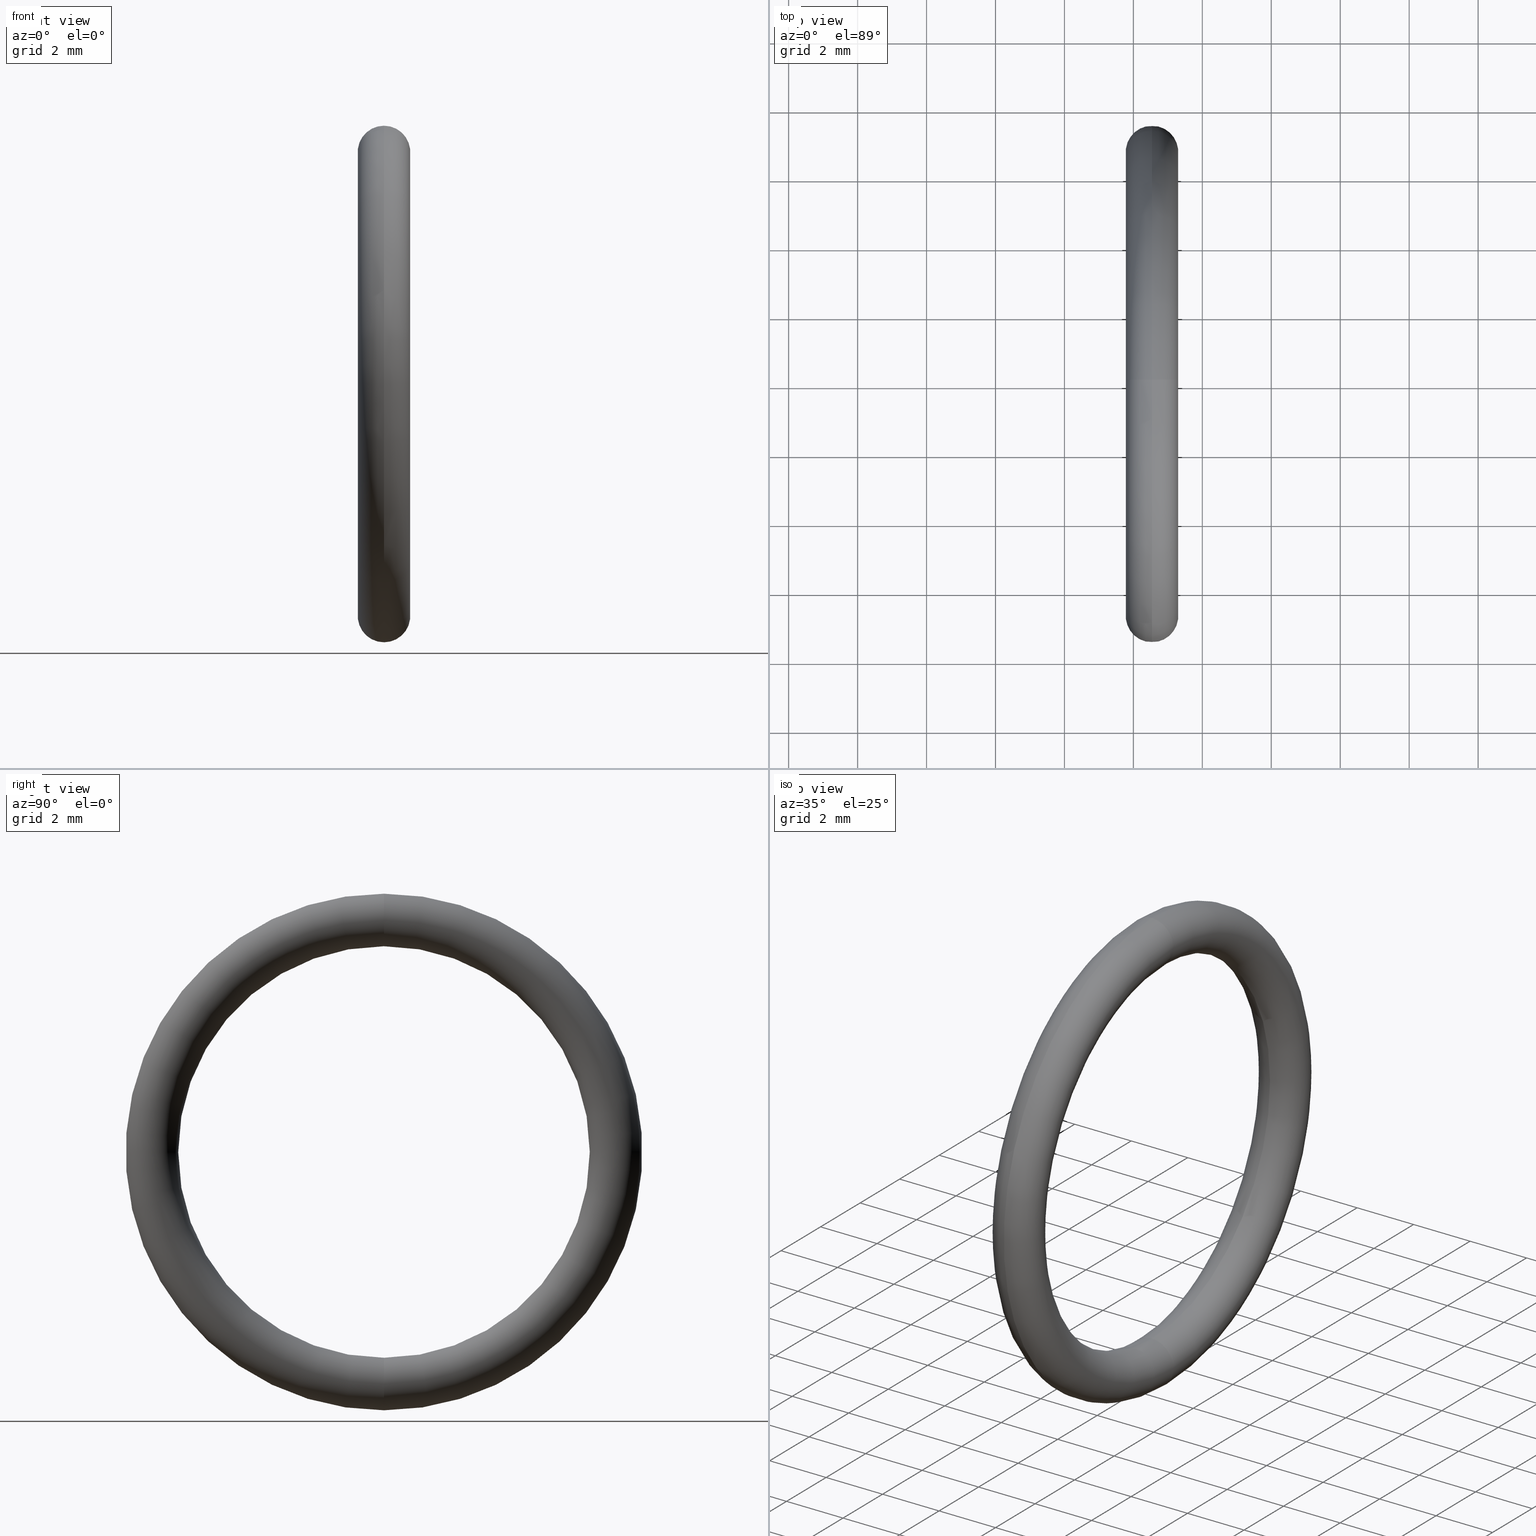
[diagram: canonical four-view strip — front | top / right | iso, engineering-drawing reading convention]
A machine part, canonical four-view strip (front | top / right | iso — engineering-drawing reading convention). The complete STEP part file that produces these views, byte-faithful:
ISO-10303-21;
HEADER;
FILE_DESCRIPTION (( 'STEP AP203' ),
    '1' );
FILE_NAME ('OM-16-VT.STEP',
    '2008-06-24T09:38:23',
    ( 'BSI05' ),
    ( 'BAYSTATE' ),
    'SwSTEP 2.0',
    'SolidWorks 2007',
    '' );
FILE_SCHEMA (( 'CONFIG_CONTROL_DESIGN' ));
ENDSEC;

DATA;
#1 = ORIENTED_EDGE ( 'NONE', *, *, #31, .T. ) ;
#2 = ORIENTED_EDGE ( 'NONE', *, *, #24, .F. ) ;
#3 = ADVANCED_FACE ( 'NONE', ( #55 ), #56, .T. ) ;
#4 = EDGE_LOOP ( 'NONE', ( #2, #34, #1, #7 ) ) ;
#5 = CLOSED_SHELL ( 'NONE', ( #30, #41, #42, #3 ) ) ;
#6 = CARTESIAN_POINT ( 'NONE',  ( 0.1000000000000000500, 0.0000000000000000000, 0.2649999999999999600 ) ) ;
#7 = ORIENTED_EDGE ( 'NONE', *, *, #47, .T. ) ;
#8 = APPROVAL_STATUS ( 'not_yet_approved' ) ;
#9 = DIRECTION ( 'NONE',  ( 0.0000000000000000000, 0.0000000000000000000, -1.000000000000000000 ) ) ;
#10 = APPROVAL ( #8, 'UNSPECIFIED' ) ;
#11 = DIRECTION ( 'NONE',  ( 0.0000000000000000000, -1.000000000000000000, 0.0000000000000000000 ) ) ;
#12 = PERSON_AND_ORGANIZATION ( #98, #186 ) ;
#13 = DATE_AND_TIME ( #20, #16 ) ;
#14 = COORDINATED_UNIVERSAL_TIME_OFFSET ( 5, 30, .AHEAD. ) ;
#15 = CC_DESIGN_APPROVAL ( #10, ( #167 ) ) ;
#16 = LOCAL_TIME ( 15, 8, 23.00000000000000000, #14 ) ;
#17 = APPROVAL_ROLE ( '' ) ;
#18 = APPROVAL_DATE_TIME ( #13, #10 ) ;
#19 = APPROVAL_PERSON_ORGANIZATION ( #12, #10, #17 ) ;
#20 = CALENDAR_DATE ( 2008, 24, 6 ) ;
#21 = EDGE_CURVE ( 'NONE', #32, #22, #54, .T. ) ;
#22 = VERTEX_POINT ( 'NONE', #75 ) ;
#23 = ORIENTED_EDGE ( 'NONE', *, *, #24, .T. ) ;
#24 = EDGE_CURVE ( 'NONE', #28, #32, #135, .T. ) ;
#25 = ORIENTED_EDGE ( 'NONE', *, *, #29, .F. ) ;
#26 = EDGE_LOOP ( 'NONE', ( #25, #23, #52, #51 ) ) ;
#27 = MANIFOLD_SOLID_BREP ( 'NONE', #5 ) ;
#28 = VERTEX_POINT ( 'NONE', #104 ) ;
#29 = EDGE_CURVE ( 'NONE', #28, #33, #115, .T. ) ;
#30 = ADVANCED_FACE ( 'NONE', ( #116 ), #134, .T. ) ;
#31 = EDGE_CURVE ( 'NONE', #33, #22, #78, .T. ) ;
#32 = VERTEX_POINT ( 'NONE', #125 ) ;
#33 = VERTEX_POINT ( 'NONE', #124 ) ;
#34 = ORIENTED_EDGE ( 'NONE', *, *, #35, .F. ) ;
#35 = EDGE_CURVE ( 'NONE', #33, #28, #83, .T. ) ;
#36 = ORIENTED_EDGE ( 'NONE', *, *, #39, .T. ) ;
#37 = ORIENTED_EDGE ( 'NONE', *, *, #35, .T. ) ;
#38 = ORIENTED_EDGE ( 'NONE', *, *, #21, .F. ) ;
#39 = EDGE_CURVE ( 'NONE', #22, #33, #90, .T. ) ;
#40 = ORIENTED_EDGE ( 'NONE', *, *, #39, .F. ) ;
#41 = ADVANCED_FACE ( 'NONE', ( #127 ), #70, .T. ) ;
#42 = ADVANCED_FACE ( 'NONE', ( #63 ), #62, .T. ) ;
#43 = ORIENTED_EDGE ( 'NONE', *, *, #50, .F. ) ;
#44 = ORIENTED_EDGE ( 'NONE', *, *, #29, .T. ) ;
#45 = EDGE_LOOP ( 'NONE', ( #38, #48, #44, #40 ) ) ;
#46 = ORIENTED_EDGE ( 'NONE', *, *, #47, .F. ) ;
#47 = EDGE_CURVE ( 'NONE', #22, #32, #105, .T. ) ;
#48 = ORIENTED_EDGE ( 'NONE', *, *, #50, .T. ) ;
#49 = EDGE_LOOP ( 'NONE', ( #43, #46, #36, #37 ) ) ;
#50 = EDGE_CURVE ( 'NONE', #32, #28, #97, .T. ) ;
#51 = ORIENTED_EDGE ( 'NONE', *, *, #31, .F. ) ;
#52 = ORIENTED_EDGE ( 'NONE', *, *, #21, .T. ) ;
#53 = AXIS2_PLACEMENT_3D ( 'NONE', #6, #11, #9 ) ;
#54 = CIRCLE ( 'NONE', #53, 0.03000000000000002300 ) ;
#55 = FACE_OUTER_BOUND ( 'NONE', #4, .T. ) ;
#56 = TOROIDAL_SURFACE ( 'NONE', #57, 0.2649999999999999600, 0.03000000000000000900 ) ;
#57 = AXIS2_PLACEMENT_3D ( 'NONE', #60, #58, #59 ) ;
#58 = DIRECTION ( 'NONE',  ( -1.000000000000000000, 0.0000000000000000000, 0.0000000000000000000 ) ) ;
#59 = DIRECTION ( 'NONE',  ( 0.0000000000000000000, 0.0000000000000000000, 1.000000000000000000 ) ) ;
#60 = CARTESIAN_POINT ( 'NONE',  ( 0.1000000000000000500, 0.0000000000000000000, 0.0000000000000000000 ) ) ;
#61 = CARTESIAN_POINT ( 'NONE',  ( 0.1000000000000000500, 0.0000000000000000000, 0.0000000000000000000 ) ) ;
#62 = TOROIDAL_SURFACE ( 'NONE', #108, 0.2649999999999999600, 0.03000000000000000900 ) ;
#63 = FACE_OUTER_BOUND ( 'NONE', #49, .T. ) ;
#64 = DIRECTION ( 'NONE',  ( 0.0000000000000000000, 0.0000000000000000000, 1.000000000000000000 ) ) ;
#65 = DIRECTION ( 'NONE',  ( 0.0000000000000000000, -1.224646799147353500E-016, 1.000000000000000000 ) ) ;
#66 = DIRECTION ( 'NONE',  ( 0.0000000000000000000, 1.000000000000000000, 1.224646799147353200E-016 ) ) ;
#67 = AXIS2_PLACEMENT_3D ( 'NONE', #92, #91, #110 ) ;
#68 = DIRECTION ( 'NONE',  ( -1.000000000000000000, 0.0000000000000000000, 0.0000000000000000000 ) ) ;
#69 = AXIS2_PLACEMENT_3D ( 'NONE', #126, #68, #64 ) ;
#70 = TOROIDAL_SURFACE ( 'NONE', #69, 0.2649999999999999600, 0.03000000000000000900 ) ;
#71 = DIRECTION ( 'NONE',  ( 0.0000000000000000000, 0.0000000000000000000, 1.000000000000000000 ) ) ;
#72 = DIRECTION ( 'NONE',  ( -1.000000000000000000, 0.0000000000000000000, 0.0000000000000000000 ) ) ;
#73 = CARTESIAN_POINT ( 'NONE',  ( 0.1000000000000000500, 0.0000000000000000000, 0.0000000000000000000 ) ) ;
#74 = AXIS2_PLACEMENT_3D ( 'NONE', #73, #72, #71 ) ;
#75 = CARTESIAN_POINT ( 'NONE',  ( 0.1000000000000000500, 0.0000000000000000000, 0.2349999999999999600 ) ) ;
#76 = DIRECTION ( 'NONE',  ( 1.000000000000000000, 0.0000000000000000000, 0.0000000000000000000 ) ) ;
#77 = AXIS2_PLACEMENT_3D ( 'NONE', #87, #103, #76 ) ;
#78 = CIRCLE ( 'NONE', #74, 0.2349999999999999600 ) ;
#79 = DIRECTION ( 'NONE',  ( 0.0000000000000000000, -1.224646799147353500E-016, 1.000000000000000000 ) ) ;
#80 = DIRECTION ( 'NONE',  ( 0.0000000000000000000, 1.000000000000000000, 1.224646799147353200E-016 ) ) ;
#81 = CARTESIAN_POINT ( 'NONE',  ( 0.1000000000000000500, 3.245314017740485600E-017, -0.2649999999999999600 ) ) ;
#82 = AXIS2_PLACEMENT_3D ( 'NONE', #81, #80, #79 ) ;
#83 = CIRCLE ( 'NONE', #82, 0.03000000000000002300 ) ;
#84 = CARTESIAN_POINT ( 'NONE',  ( 0.1000000000000000500, 0.0000000000000000000, 0.0000000000000000000 ) ) ;
#85 = DIMENSIONAL_EXPONENTS ( 1.000000000000000000, 0.0000000000000000000, 0.0000000000000000000, 0.0000000000000000000, 0.0000000000000000000, 0.0000000000000000000, 0.0000000000000000000 ) ;
#86 =( LENGTH_UNIT ( ) NAMED_UNIT ( * ) SI_UNIT ( $, .METRE. ) );
#87 = CARTESIAN_POINT ( 'NONE',  ( 0.0000000000000000000, 0.0000000000000000000, 0.0000000000000000000 ) ) ;
#88 = DIRECTION ( 'NONE',  ( 0.0000000000000000000, 0.0000000000000000000, 1.000000000000000000 ) ) ;
#89 = AXIS2_PLACEMENT_3D ( 'NONE', #84, #129, #128 ) ;
#90 = CIRCLE ( 'NONE', #89, 0.2349999999999999600 ) ;
#91 = DIRECTION ( 'NONE',  ( -1.000000000000000000, 0.0000000000000000000, 0.0000000000000000000 ) ) ;
#92 = CARTESIAN_POINT ( 'NONE',  ( 0.1000000000000000500, 0.0000000000000000000, 0.0000000000000000000 ) ) ;
#93 = DIRECTION ( 'NONE',  ( 0.0000000000000000000, 0.0000000000000000000, -1.000000000000000000 ) ) ;
#94 = DIRECTION ( 'NONE',  ( 0.0000000000000000000, -1.000000000000000000, 0.0000000000000000000 ) ) ;
#95 = CARTESIAN_POINT ( 'NONE',  ( 0.1000000000000000500, 0.0000000000000000000, 0.2649999999999999600 ) ) ;
#96 = AXIS2_PLACEMENT_3D ( 'NONE', #95, #94, #93 ) ;
#97 = CIRCLE ( 'NONE', #119, 0.2949999999999999800 ) ;
#98 = PERSON ( 'UNSPECIFIED', 'UNSPECIFIED', 'UNSPECIFIED', ('UNSPECIFIED'), ('UNSPECIFIED'), ('UNSPECIFIED') ) ;
#99 = PRODUCT ( 'OM-16-VT', 'OM-16-VT', '', ( #100 ) ) ;
#100 = MECHANICAL_CONTEXT ( 'NONE', #102, 'mechanical' ) ;
#101 = APPLICATION_PROTOCOL_DEFINITION ( 'international standard', 'config_control_design', 1994, #102 ) ;
#102 = APPLICATION_CONTEXT ( 'configuration controlled 3d designs of mechanical parts and assemblies' ) ;
#103 = DIRECTION ( 'NONE',  ( 0.0000000000000000000, 0.0000000000000000000, 1.000000000000000000 ) ) ;
#104 = CARTESIAN_POINT ( 'NONE',  ( 0.1000000000000000500, 3.612708057484692000E-017, -0.2949999999999999800 ) ) ;
#105 = CIRCLE ( 'NONE', #96, 0.03000000000000002300 ) ;
#106 = DIRECTION ( 'NONE',  ( 0.0000000000000000000, 0.0000000000000000000, 1.000000000000000000 ) ) ;
#107 = DIRECTION ( 'NONE',  ( -1.000000000000000000, 0.0000000000000000000, 0.0000000000000000000 ) ) ;
#108 = AXIS2_PLACEMENT_3D ( 'NONE', #61, #107, #106 ) ;
#109 = CARTESIAN_POINT ( 'NONE',  ( 0.1000000000000000500, 3.245314017740485600E-017, -0.2649999999999999600 ) ) ;
#110 = DIRECTION ( 'NONE',  ( 0.0000000000000000000, 0.0000000000000000000, 1.000000000000000000 ) ) ;
#111 = DIRECTION ( 'NONE',  ( 0.0000000000000000000, 0.0000000000000000000, 1.000000000000000000 ) ) ;
#112 = DIRECTION ( 'NONE',  ( -1.000000000000000000, 0.0000000000000000000, 0.0000000000000000000 ) ) ;
#113 = CARTESIAN_POINT ( 'NONE',  ( 0.1000000000000000500, 0.0000000000000000000, 0.0000000000000000000 ) ) ;
#114 = AXIS2_PLACEMENT_3D ( 'NONE', #113, #112, #111 ) ;
#115 = CIRCLE ( 'NONE', #123, 0.03000000000000002300 ) ;
#116 = FACE_OUTER_BOUND ( 'NONE', #26, .T. ) ;
#117 = DIRECTION ( 'NONE',  ( -1.000000000000000000, 0.0000000000000000000, 0.0000000000000000000 ) ) ;
#118 = CARTESIAN_POINT ( 'NONE',  ( 0.1000000000000000500, 0.0000000000000000000, 0.0000000000000000000 ) ) ;
#119 = AXIS2_PLACEMENT_3D ( 'NONE', #118, #117, #88 ) ;
#120 =( NAMED_UNIT ( * ) PLANE_ANGLE_UNIT ( ) SI_UNIT ( $, .RADIAN. ) );
#121 =( CONVERSION_BASED_UNIT ( 'INCH', #122 ) LENGTH_UNIT ( ) NAMED_UNIT ( #85 ) );
#122 = LENGTH_MEASURE_WITH_UNIT ( LENGTH_MEASURE( 0.02539999999999999900 ), #86 );
#123 = AXIS2_PLACEMENT_3D ( 'NONE', #109, #66, #65 ) ;
#124 = CARTESIAN_POINT ( 'NONE',  ( 0.1000000000000000500, 2.877919977996279200E-017, -0.2349999999999999600 ) ) ;
#125 = CARTESIAN_POINT ( 'NONE',  ( 0.1000000000000000500, 0.0000000000000000000, 0.2949999999999999800 ) ) ;
#126 = CARTESIAN_POINT ( 'NONE',  ( 0.1000000000000000500, 0.0000000000000000000, 0.0000000000000000000 ) ) ;
#127 = FACE_OUTER_BOUND ( 'NONE', #45, .T. ) ;
#128 = DIRECTION ( 'NONE',  ( 0.0000000000000000000, 0.0000000000000000000, 1.000000000000000000 ) ) ;
#129 = DIRECTION ( 'NONE',  ( -1.000000000000000000, 0.0000000000000000000, 0.0000000000000000000 ) ) ;
#130 = UNCERTAINTY_MEASURE_WITH_UNIT (LENGTH_MEASURE( 1.000000000000000100E-005 ), #121, 'distance_accuracy_value', 'NONE');
#131 =( NAMED_UNIT ( * ) SI_UNIT ( $, .STERADIAN. ) SOLID_ANGLE_UNIT ( ) );
#132 = ADVANCED_BREP_SHAPE_REPRESENTATION ( 'OM-16-VT', ( #27, #77 ), #133 ) ;
#133 =( GEOMETRIC_REPRESENTATION_CONTEXT ( 3 ) GLOBAL_UNCERTAINTY_ASSIGNED_CONTEXT ( ( #130 ) ) GLOBAL_UNIT_ASSIGNED_CONTEXT ( ( #121, #120, #131 ) ) REPRESENTATION_CONTEXT ( 'NONE', 'WORKASPACE' ) );
#134 = TOROIDAL_SURFACE ( 'NONE', #114, 0.2649999999999999600, 0.03000000000000000900 ) ;
#135 = CIRCLE ( 'NONE', #67, 0.2949999999999999800 ) ;
#136 = APPLICATION_CONTEXT ( 'configuration controlled 3d designs of mechanical parts and assemblies' ) ;
#137 = DATE_AND_TIME ( #138, #149 ) ;
#138 = CALENDAR_DATE ( 2008, 24, 6 ) ;
#139 = APPROVAL_PERSON_ORGANIZATION ( #160, #174, #191 ) ;
#140 = PRODUCT_DEFINITION_FORMATION_WITH_SPECIFIED_SOURCE ( 'ANY', '', #99, .NOT_KNOWN. ) ;
#141 = CC_DESIGN_DATE_AND_TIME_ASSIGNMENT ( #171, #142, ( #146 ) ) ;
#142 = DATE_TIME_ROLE ( 'creation_date' ) ;
#143 = COORDINATED_UNIVERSAL_TIME_OFFSET ( 5, 30, .AHEAD. ) ;
#144 = CC_DESIGN_PERSON_AND_ORGANIZATION_ASSIGNMENT ( #162, #145, ( #140 ) ) ;
#145 = PERSON_AND_ORGANIZATION_ROLE ( 'creator' ) ;
#146 = PRODUCT_DEFINITION ( 'UNKNOWN', '', #140, #158 ) ;
#147 = PERSON_AND_ORGANIZATION_ROLE ( 'design_supplier' ) ;
#148 = PERSON_AND_ORGANIZATION ( #98, #186 ) ;
#149 = LOCAL_TIME ( 15, 8, 23.00000000000000000, #143 ) ;
#150 = CC_DESIGN_PERSON_AND_ORGANIZATION_ASSIGNMENT ( #161, #170, ( #99 ) ) ;
#151 = APPLICATION_PROTOCOL_DEFINITION ( 'international standard', 'config_control_design', 1994, #136 ) ;
#152 = APPROVAL_ROLE ( '' ) ;
#153 = APPROVAL ( #154, 'UNSPECIFIED' ) ;
#154 = APPROVAL_STATUS ( 'not_yet_approved' ) ;
#155 = PERSON_AND_ORGANIZATION ( #98, #186 ) ;
#156 = CC_DESIGN_APPROVAL ( #174, ( #146 ) ) ;
#157 = APPROVAL_DATE_TIME ( #137, #174 ) ;
#158 = DESIGN_CONTEXT ( 'detailed design', #136, 'design' ) ;
#159 = PERSON_AND_ORGANIZATION ( #98, #186 ) ;
#160 = PERSON_AND_ORGANIZATION ( #98, #186 ) ;
#161 = PERSON_AND_ORGANIZATION ( #98, #186 ) ;
#162 = PERSON_AND_ORGANIZATION ( #98, #186 ) ;
#163 = CC_DESIGN_APPROVAL ( #153, ( #140 ) ) ;
#164 = APPROVAL_DATE_TIME ( #165, #153 ) ;
#165 = DATE_AND_TIME ( #187, #188 ) ;
#166 = APPROVAL_STATUS ( 'not_yet_approved' ) ;
#167 = SECURITY_CLASSIFICATION ( '', '', #168 ) ;
#168 = SECURITY_CLASSIFICATION_LEVEL ( 'unclassified' ) ;
#169 = CC_DESIGN_PERSON_AND_ORGANIZATION_ASSIGNMENT ( #148, #147, ( #140 ) ) ;
#170 = PERSON_AND_ORGANIZATION_ROLE ( 'design_owner' ) ;
#171 = DATE_AND_TIME ( #172, #173 ) ;
#172 = CALENDAR_DATE ( 2008, 24, 6 ) ;
#173 = LOCAL_TIME ( 15, 8, 23.00000000000000000, #192 ) ;
#174 = APPROVAL ( #166, 'UNSPECIFIED' ) ;
#175 = CC_DESIGN_PERSON_AND_ORGANIZATION_ASSIGNMENT ( #159, #176, ( #146 ) ) ;
#176 = PERSON_AND_ORGANIZATION_ROLE ( 'creator' ) ;
#177 = CC_DESIGN_DATE_AND_TIME_ASSIGNMENT ( #179, #178, ( #167 ) ) ;
#178 = DATE_TIME_ROLE ( 'classification_date' ) ;
#179 = DATE_AND_TIME ( #180, #181 ) ;
#180 = CALENDAR_DATE ( 2008, 24, 6 ) ;
#181 = LOCAL_TIME ( 15, 8, 23.00000000000000000, #182 ) ;
#182 = COORDINATED_UNIVERSAL_TIME_OFFSET ( 5, 30, .AHEAD. ) ;
#183 = CC_DESIGN_PERSON_AND_ORGANIZATION_ASSIGNMENT ( #185, #184, ( #167 ) ) ;
#184 = PERSON_AND_ORGANIZATION_ROLE ( 'classification_officer' ) ;
#185 = PERSON_AND_ORGANIZATION ( #98, #186 ) ;
#186 = ORGANIZATION ( 'UNSPECIFIED', 'UNSPECIFIED', '' ) ;
#187 = CALENDAR_DATE ( 2008, 24, 6 ) ;
#188 = LOCAL_TIME ( 15, 8, 23.00000000000000000, #189 ) ;
#189 = COORDINATED_UNIVERSAL_TIME_OFFSET ( 5, 30, .AHEAD. ) ;
#190 = APPROVAL_PERSON_ORGANIZATION ( #155, #153, #152 ) ;
#191 = APPROVAL_ROLE ( '' ) ;
#192 = COORDINATED_UNIVERSAL_TIME_OFFSET ( 5, 30, .AHEAD. ) ;
#193 = SHAPE_DEFINITION_REPRESENTATION ( #195, #132 ) ;
#194 = PRODUCT_RELATED_PRODUCT_CATEGORY ( 'detail', '', ( #99 ) ) ;
#195 = PRODUCT_DEFINITION_SHAPE ( 'NONE', 'NONE',  #146 ) ;
#196 = CC_DESIGN_SECURITY_CLASSIFICATION ( #167, ( #140 ) ) ;
ENDSEC;
END-ISO-10303-21;
